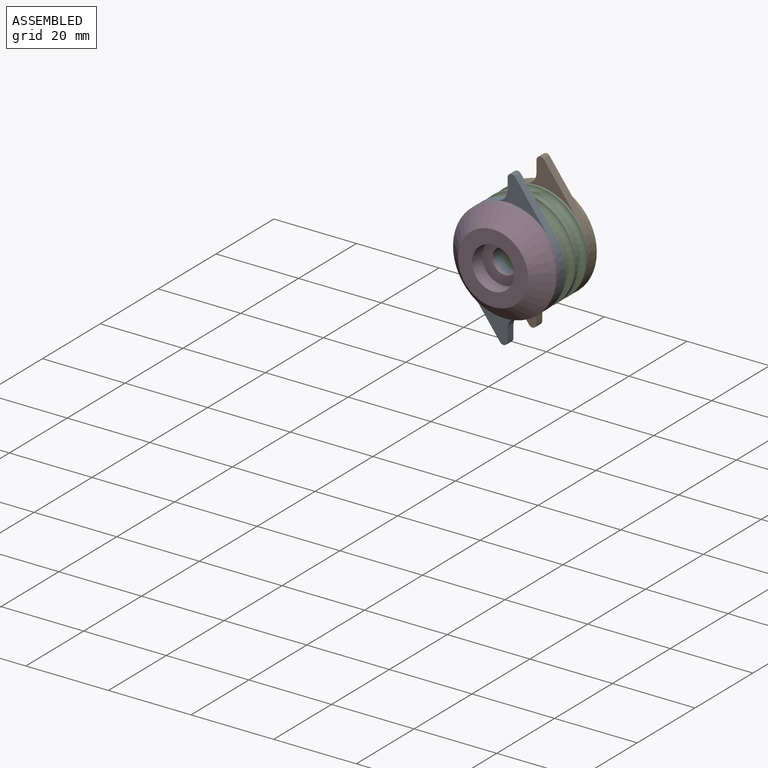
[diagram: assembled view]
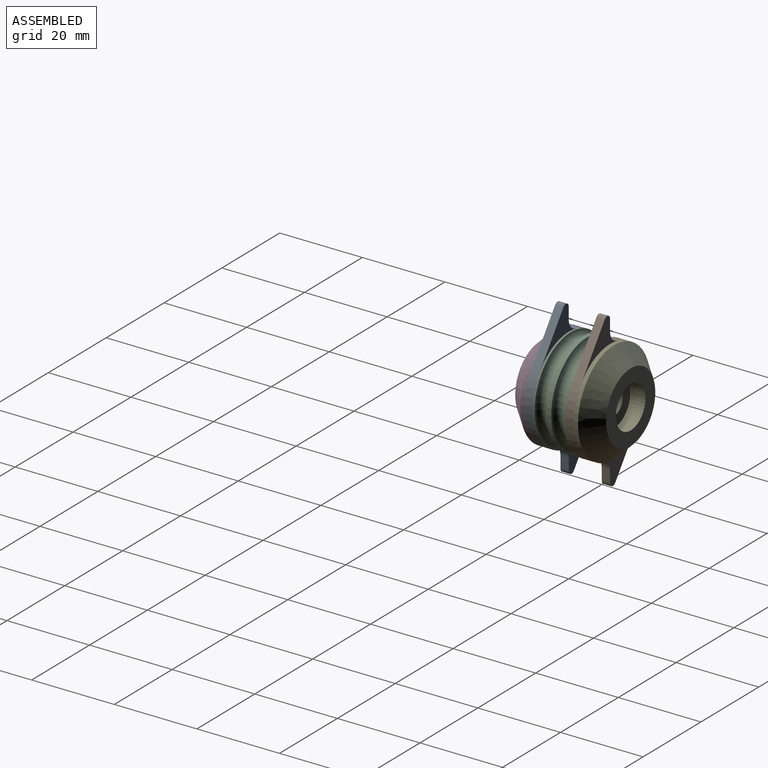
[diagram: assembled view, second angle]
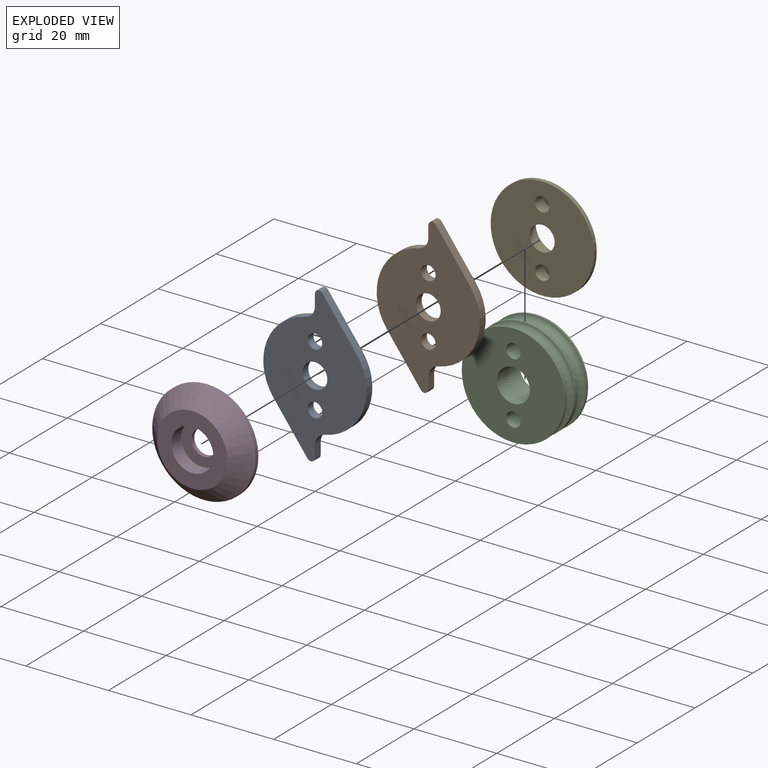
[diagram: exploded view]
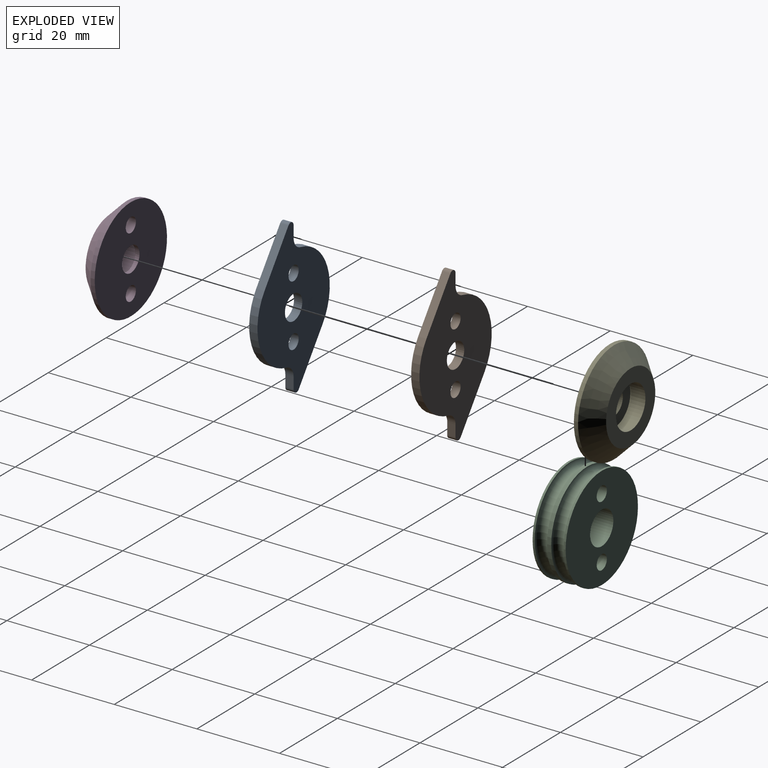
[diagram: exploded view, second angle]
ASSEMBLY  parts=5 mates=4
PART A: 15 faces, bbox 25x2x37.9 mm
  f0: cylinder r=12.5mm len=19.7mm, axis (0,1,0), area 50.3mm2, adj f1,f9,f10,f12
  f1: plane 11.12x8.24mm, normal (-0.8,0,-0.6), area 27.7mm2, adj f0,f9,f10,f14
  f2: plane 2.76x2mm, normal (1,0,0), area 5.5mm2, adj f9,f10,f11,f14
  f3: cylinder r=12.5mm len=19.7mm, axis (0,1,0), area 50.3mm2, adj f4,f9,f10,f11
  f4: plane 11.12x8.24mm, normal (0.8,0,0.6), area 27.7mm2, adj f3,f9,f10,f13
  f5: cylinder r=3mm len=6mm, axis (0,1,0), area 37.7mm2, adj f9,f10
  f6: cylinder r=1.75mm len=3.5mm, axis (0,1,0), area 22mm2, adj f9,f10
  f7: cylinder r=1.75mm len=3.5mm, axis (0,1,0), area 22mm2, adj f9,f10
  f8: plane 2.76x2mm, normal (-1,0,0), area 5.5mm2, adj f9,f10,f12,f13
  f9: plane 37.94x25mm, normal (0,-1,0), area 507.7mm2, adj f0,f1,f2,f3,f4,f5,f6,f7
  f10: plane 37.94x25mm, normal (0,1,0), area 507.7mm2, adj f0,f1,f2,f3,f4,f5,f6,f7
  f11: cylinder r=3mm len=2.94mm, axis (0,1,0), area 8.3mm2, adj f2,f3,f9,f10
  f12: cylinder r=3mm len=2.94mm, axis (0,1,0), area 8.3mm2, adj f0,f8,f9,f10
  f13: cylinder r=1mm len=2mm, axis (0,-1,0), area 5mm2, adj f4,f8,f9,f10
  f14: cylinder r=1mm len=2mm, axis (0,-1,0), area 5mm2, adj f1,f2,f9,f10
PART B: same geometry as A
PART C: 10 faces, bbox 29.4x8x29.4 mm
  f0: plane 25x25mm, normal (0,-1,0), area 421.4mm2, adj f6,f7,f8,f9
  f1: plane 25x25mm, normal (0,1,0), area 421.4mm2, adj f2,f7,f8,f9
  f2: cylinder r=12.5mm len=25mm, axis (0,-1,0), area 39.3mm2, adj f1,f3
  f3: torus R=12.5mm, axis (0,-1,0), area 341.8mm2, adj f2,f4
  f4: cylinder r=12.5mm len=25mm, axis (0,-1,0), area 78.5mm2, adj f3,f5
  f5: torus R=12.5mm, axis (0,-1,0), area 341.8mm2, adj f4,f6
  f6: cylinder r=12.5mm len=25mm, axis (0,-1,0), area 39.3mm2, adj f0,f5
  f7: cylinder r=4mm len=8mm, axis (0,-1,0), area 201.1mm2, adj f0,f1
  f8: cylinder r=1.75mm len=8mm, axis (0,-1,0), area 88mm2, adj f0,f1
  f9: cylinder r=1.75mm len=8mm, axis (0,-1,0), area 88mm2, adj f0,f1
PART D: 12 faces, bbox 25x5x25 mm
  f0: plane 17x17mm, normal (0,-1,0), area 145.3mm2, adj f1,f11
  f1: cylinder r=5.1mm len=10.2mm, axis (0,1,0), area 112.2mm2, adj f0,f2
  f2: cone r=5.1mm half-angle=45deg, axis (0,1,0), area 23.8mm2, adj f1,f3
  f3: plane 11.2x11.2mm, normal (0,-1,0), area 70.2mm2, adj f2,f4
  f4: cylinder r=3mm len=6mm, axis (0,1,0), area 18.8mm2, adj f3,f5
  f5: plane 25x25mm, normal (0,1,0), area 443.4mm2, adj f4,f6,f7,f9
  f6: cylinder r=12.5mm len=25mm, axis (0,1,0), area 78.5mm2, adj f5,f11
  f7: cylinder r=1.75mm len=3.5mm, axis (0,-1,0), area 33mm2, adj f5,f8
  f8: plane 3.5x3.5mm, normal (0,1,0), area 9.6mm2, adj f7
  f9: cylinder r=1.75mm len=3.5mm, axis (0,-1,0), area 33mm2, adj f5,f10
  f10: plane 3.5x3.5mm, normal (0,1,0), area 9.6mm2, adj f9
  f11: cone r=12.5mm half-angle=45deg, axis (0,1,0), area 373.2mm2, adj f0,f6
PART E: same geometry as D
PLACE A at identity
PLACE B t=(0,10,0)mm
PLACE C at identity
PLACE D t=(0,-7,0)mm
PLACE E rot(axis=(0,0,1),180deg) t=(0,15,0)mm
MATE planar B.f5 <-> C.f2  axis (0,-1,0) through (0,8,0)mm
MATE planar D.f1 <-> A.f5  axis (0,1,0) through (0,-2,0)mm
MATE planar A.f5 <-> C.f7  axis (0,1,0) through (0,0,0)mm
MATE planar E.f1 <-> B.f5  axis (0,-1,0) through (0,10,0)mm
